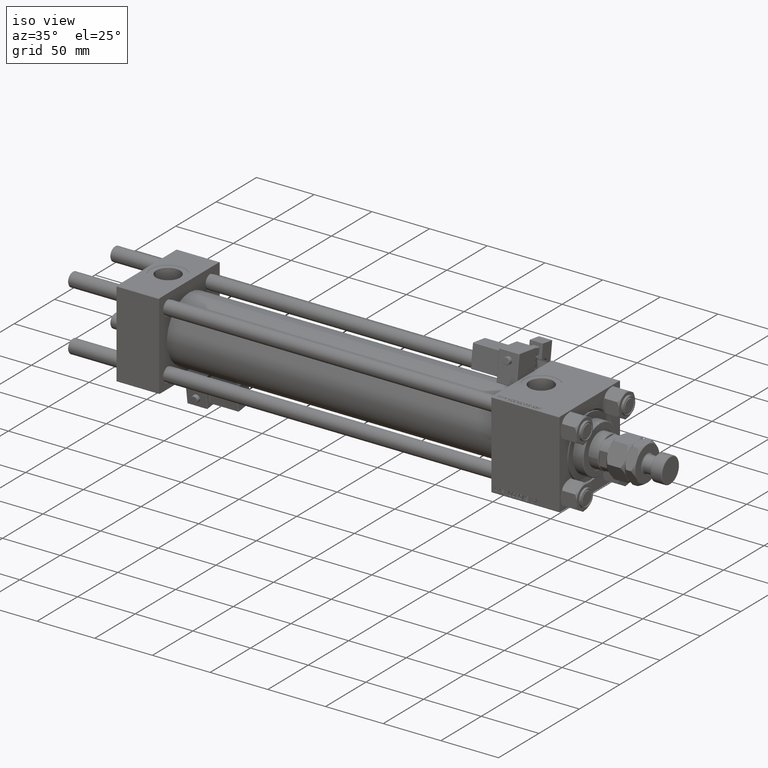
[diagram: clean part render]
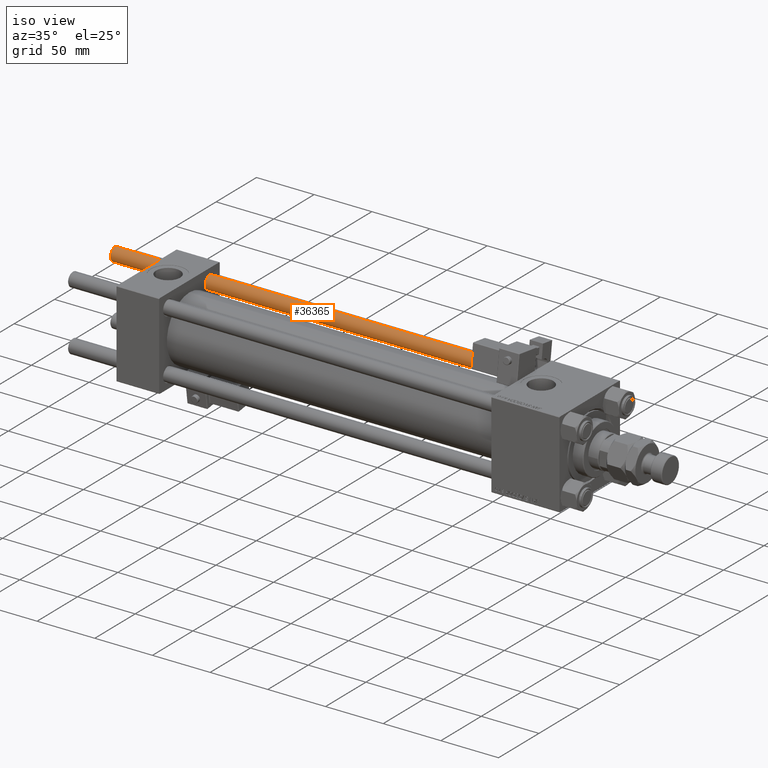
[diagram: same view with one face highlighted and labeled with its STEP entity id]
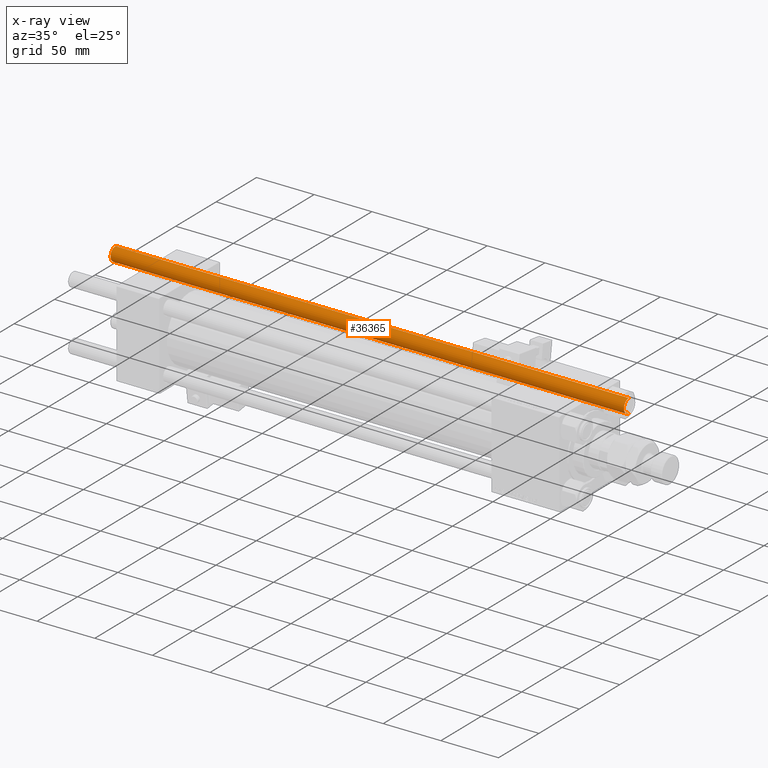
[diagram: x-ray of the same camera — body ghosted, the highlighted face saturated]
A machine part, iso view. The second image highlights one B-rep face of the part: STEP entity #36365.
The next image is the same camera in x-ray: the body ghosted, the highlighted face saturated — about 0% of this face is hidden behind the body in this view.
In plain terms, the highlighted cylindrical surface (edge-blend (fillet) strip) has radius 6 mm, axis along (-1, -0, -0).
Its self-contained STEP definition (entity closure, byte-faithful):
#24 = DIRECTION ( 'NONE',  ( -0.000000000000000000, -0.000000000000000000, -1.000000000000000000 ) ) ;
#823 = CARTESIAN_POINT ( 'NONE',  ( 0.000000000000000000, 0.000000000000000000, 445.5000000000003411 ) ) ;
#1688 = ORIENTED_EDGE ( 'NONE', *, *, #21848, .T. ) ;
#2968 = VERTEX_POINT ( 'NONE', #33578 ) ;
#4021 = ORIENTED_EDGE ( 'NONE', *, *, #11006, .T. ) ;
#4479 = EDGE_LOOP ( 'NONE', ( #50305, #1688, #4021, #38952 ) ) ;
#5056 = DIRECTION ( 'NONE',  ( 1.000000000000000000, 0.000000000000000000, 0.000000000000000000 ) ) ;
#6310 = DIRECTION ( 'NONE',  ( 1.000000000000000000, 0.000000000000000000, 0.000000000000000000 ) ) ;
#6805 = CARTESIAN_POINT ( 'NONE',  ( -6.000000000000000888, 0.000000000000000000, 0.5000000000003890221 ) ) ;
#7324 = VECTOR ( 'NONE', #24, 1000.000000000000000 ) ;
#7762 = AXIS2_PLACEMENT_3D ( 'NONE', #33018, #50161, #11651 ) ;
#8242 = FACE_OUTER_BOUND ( 'NONE', #4479, .T. ) ;
#11006 = EDGE_CURVE ( 'NONE', #45757, #15181, #54068, .T. ) ;
#11086 = VECTOR ( 'NONE', #35186, 1000.000000000000000 ) ;
#11651 = DIRECTION ( 'NONE',  ( -1.000000000000000000, 0.000000000000000000, 0.000000000000000000 ) ) ;
#13804 = DIRECTION ( 'NONE',  ( 0.000000000000000000, 0.000000000000000000, -1.000000000000000000 ) ) ;
#15181 = VERTEX_POINT ( 'NONE', #6805 ) ;
#15879 = CYLINDRICAL_SURFACE ( 'NONE', #7762, 6.000000000000000888 ) ;
#16428 = CIRCLE ( 'NONE', #28095, 6.000000000000000888 ) ;
#16612 = CARTESIAN_POINT ( 'NONE',  ( -6.000000000000000888, 0.000000000000000000, 445.5000000000003411 ) ) ;
#21848 = EDGE_CURVE ( 'NONE', #2968, #45757, #16428, .T. ) ;
#26467 = LINE ( 'NONE', #43904, #11086 ) ;
#27468 = VERTEX_POINT ( 'NONE', #36148 ) ;
#27965 = DIRECTION ( 'NONE',  ( -0.000000000000000000, -0.000000000000000000, 1.000000000000000000 ) ) ;
#28095 = AXIS2_PLACEMENT_3D ( 'NONE', #823, #13804, #5056 ) ;
#33018 = CARTESIAN_POINT ( 'NONE',  ( 0.000000000000000000, 0.000000000000000000, 446.0000000000000000 ) ) ;
#33578 = CARTESIAN_POINT ( 'NONE',  ( 6.000000000000000888, 7.347880794884119736E-16, 445.5000000000003411 ) ) ;
#34360 = CARTESIAN_POINT ( 'NONE',  ( -6.000000000000000888, 0.000000000000000000, 446.0000000000000000 ) ) ;
#34799 = AXIS2_PLACEMENT_3D ( 'NONE', #49605, #27965, #6310 ) ;
#35186 = DIRECTION ( 'NONE',  ( -0.000000000000000000, -0.000000000000000000, -1.000000000000000000 ) ) ;
#36148 = CARTESIAN_POINT ( 'NONE',  ( 6.000000000000000888, 7.347880794884119736E-16, 0.5000000000003890221 ) ) ;
#36171 = EDGE_CURVE ( 'NONE', #15181, #27468, #40174, .T. ) ;
#36365 = ADVANCED_FACE ( 'NONE', ( #8242 ), #15879, .T. ) ;
#38952 = ORIENTED_EDGE ( 'NONE', *, *, #36171, .T. ) ;
#40174 = CIRCLE ( 'NONE', #34799, 6.000000000000000888 ) ;
#43904 = CARTESIAN_POINT ( 'NONE',  ( 6.000000000000000888, 7.347880794884119736E-16, 446.0000000000000000 ) ) ;
#44630 = EDGE_CURVE ( 'NONE', #2968, #27468, #26467, .T. ) ;
#45757 = VERTEX_POINT ( 'NONE', #16612 ) ;
#49605 = CARTESIAN_POINT ( 'NONE',  ( 0.000000000000000000, 0.000000000000000000, 0.5000000000003890221 ) ) ;
#50161 = DIRECTION ( 'NONE',  ( -0.000000000000000000, -0.000000000000000000, -1.000000000000000000 ) ) ;
#50305 = ORIENTED_EDGE ( 'NONE', *, *, #44630, .F. ) ;
#54068 = LINE ( 'NONE', #34360, #7324 ) ;